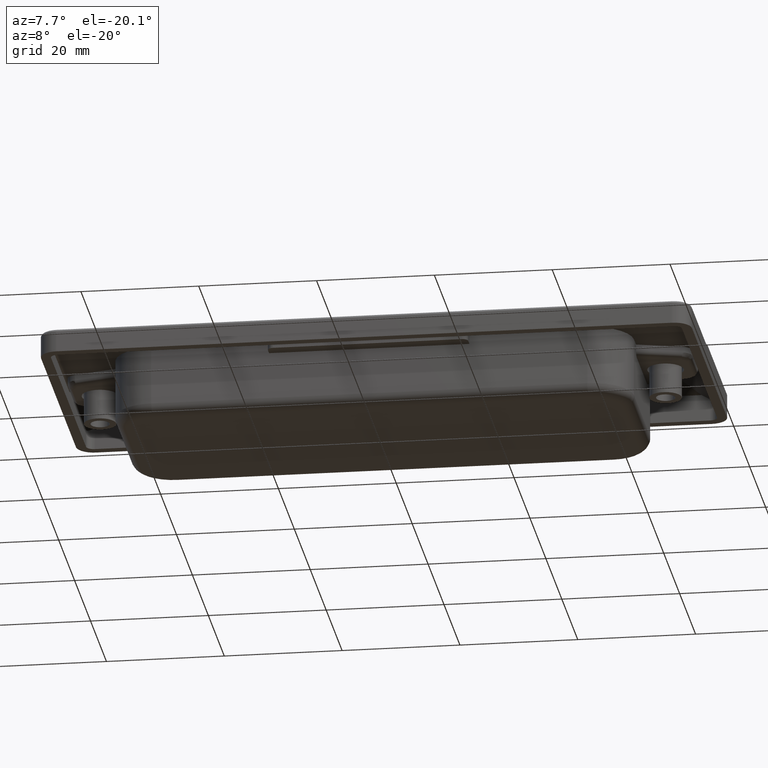
[diagram: clean part render]
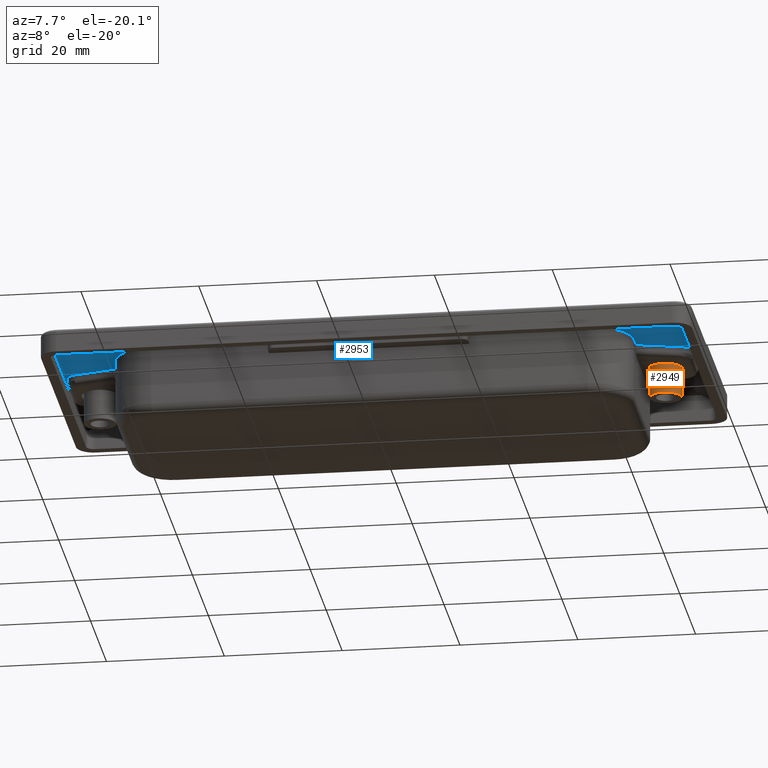
[diagram: same view with the hole feature highlighted: cylindrical wall and planar end face, labeled with their STEP entity ids]
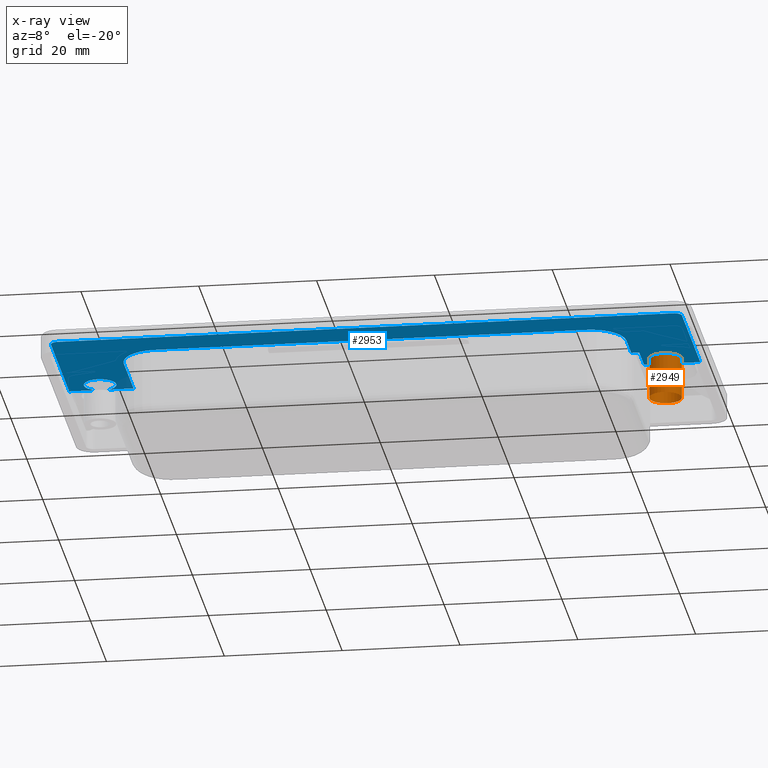
[diagram: x-ray of the same camera — body ghosted, the hole faces saturated]
A machine part, auxiliary view. The highlighted faces form one hole feature of diameter 5.5 mm: the cylindrical wall (entity #2949, orange) and its adjacent planar end face (entity #2953, blue) — they share a circular edge in the B-rep.
The next image is the same camera in x-ray (body ghosted, the hole faces saturated) — the bore reads through the body.
Wall:
#37=FACE_BOUND('',#923,.T.);
#633=CYLINDRICAL_SURFACE('',#3166,2.75);
#741=FACE_OUTER_BOUND('',#922,.T.);
#922=EDGE_LOOP('',(#2127));
#923=EDGE_LOOP('',(#2128,#2129));
#1142=CIRCLE('',#3167,2.75);
#1143=CIRCLE('',#3168,2.75);
#1144=CIRCLE('',#3169,2.75);
#1323=VERTEX_POINT('',#4714);
#1324=VERTEX_POINT('',#4716);
#1325=VERTEX_POINT('',#4717);
#1634=EDGE_CURVE('',#1323,#1323,#1142,.T.);
#1635=EDGE_CURVE('',#1324,#1325,#1143,.T.);
#1636=EDGE_CURVE('',#1325,#1324,#1144,.T.);
#2127=ORIENTED_EDGE('',*,*,#1634,.F.);
#2128=ORIENTED_EDGE('',*,*,#1635,.F.);
#2129=ORIENTED_EDGE('',*,*,#1636,.F.);
#2949=ADVANCED_FACE('',(#741,#37),#633,.T.);
#3166=AXIS2_PLACEMENT_3D('',#4713,#3618,#3619);
#3167=AXIS2_PLACEMENT_3D('',#4715,#3620,#3621);
#3168=AXIS2_PLACEMENT_3D('',#4718,#3622,#3623);
#3169=AXIS2_PLACEMENT_3D('',#4719,#3624,#3625);
#3618=DIRECTION('center_axis',(0.,0.,-1.));
#3619=DIRECTION('ref_axis',(1.,0.,0.));
#3620=DIRECTION('center_axis',(0.,0.,-1.));
#3621=DIRECTION('ref_axis',(1.,0.,0.));
#3622=DIRECTION('center_axis',(0.,0.,1.));
#3623=DIRECTION('ref_axis',(1.,0.,0.));
#3624=DIRECTION('center_axis',(0.,0.,1.));
#3625=DIRECTION('ref_axis',(1.,0.,0.));
#4713=CARTESIAN_POINT('Origin',(48.,23.5,-1.7));
#4714=CARTESIAN_POINT('',(45.25,23.5,-8.7));
#4715=CARTESIAN_POINT('Origin',(48.,23.5,-8.7));
#4716=CARTESIAN_POINT('',(46.8543560762611,26.,-1.7));
#4717=CARTESIAN_POINT('',(49.145643923739,26.,-1.7));
#4718=CARTESIAN_POINT('Origin',(48.,23.5,-1.7));
#4719=CARTESIAN_POINT('Origin',(48.,23.5,-1.7));
End face:
#58=PLANE('',#3176);
#173=LINE('',#4731,#411);
#174=LINE('',#4733,#412);
#175=LINE('',#4737,#413);
#176=LINE('',#4741,#414);
#177=LINE('',#4745,#415);
#178=LINE('',#4747,#416);
#179=LINE('',#4749,#417);
#180=LINE('',#4750,#418);
#181=LINE('',#4752,#419);
#182=LINE('',#4754,#420);
#183=LINE('',#4758,#421);
#184=LINE('',#4761,#422);
#411=VECTOR('',#3638,4.2043560762611);
#412=VECTOR('',#3639,4.40435607626107);
#413=VECTOR('',#3644,12.2);
#414=VECTOR('',#3647,73.3);
#415=VECTOR('',#3650,6.19999999999999);
#416=VECTOR('',#3651,1.35000000000002);
#417=VECTOR('',#3652,6.);
#418=VECTOR('',#3653,2.85435607626104);
#419=VECTOR('',#3654,4.40435607626105);
#420=VECTOR('',#3655,23.);
#421=VECTOR('',#3658,104.5);
#422=VECTOR('',#3661,23.);
#745=FACE_OUTER_BOUND('',#928,.T.);
#928=EDGE_LOOP('',(#2141,#2142,#2143,#2144,#2145,#2146,#2147,#2148,#2149,
#2150,#2151,#2152,#2153,#2154,#2155,#2156,#2157,#2158));
#1140=CIRCLE('',#3162,2.75);
#1143=CIRCLE('',#3168,2.75);
#1147=CIRCLE('',#3177,6.);
#1148=CIRCLE('',#3178,5.99999999999999);
#1149=CIRCLE('',#3179,1.3);
#1150=CIRCLE('',#3180,1.3);
#1321=VERTEX_POINT('',#4706);
#1322=VERTEX_POINT('',#4707);
#1324=VERTEX_POINT('',#4716);
#1325=VERTEX_POINT('',#4717);
#1329=VERTEX_POINT('',#4729);
#1330=VERTEX_POINT('',#4732);
#1331=VERTEX_POINT('',#4736);
#1332=VERTEX_POINT('',#4738);
#1333=VERTEX_POINT('',#4740);
#1334=VERTEX_POINT('',#4742);
#1335=VERTEX_POINT('',#4744);
#1336=VERTEX_POINT('',#4746);
#1337=VERTEX_POINT('',#4748);
#1338=VERTEX_POINT('',#4751);
#1339=VERTEX_POINT('',#4753);
#1340=VERTEX_POINT('',#4755);
#1341=VERTEX_POINT('',#4757);
#1342=VERTEX_POINT('',#4759);
#1631=EDGE_CURVE('',#1321,#1322,#1140,.T.);
#1635=EDGE_CURVE('',#1324,#1325,#1143,.T.);
#1641=EDGE_CURVE('',#1329,#1322,#173,.T.);
#1642=EDGE_CURVE('',#1321,#1330,#174,.T.);
#1644=EDGE_CURVE('',#1329,#1331,#175,.T.);
#1645=EDGE_CURVE('',#1331,#1332,#1147,.T.);
#1646=EDGE_CURVE('',#1332,#1333,#176,.T.);
#1647=EDGE_CURVE('',#1333,#1334,#1148,.T.);
#1648=EDGE_CURVE('',#1334,#1335,#177,.T.);
#1649=EDGE_CURVE('',#1335,#1336,#178,.T.);
#1650=EDGE_CURVE('',#1336,#1337,#179,.T.);
#1651=EDGE_CURVE('',#1324,#1337,#180,.T.);
#1652=EDGE_CURVE('',#1338,#1325,#181,.T.);
#1653=EDGE_CURVE('',#1339,#1338,#182,.F.);
#1654=EDGE_CURVE('',#1340,#1339,#1149,.F.);
#1655=EDGE_CURVE('',#1341,#1340,#183,.T.);
#1656=EDGE_CURVE('',#1341,#1342,#1150,.T.);
#1657=EDGE_CURVE('',#1330,#1342,#184,.T.);
#2141=ORIENTED_EDGE('',*,*,#1631,.T.);
#2142=ORIENTED_EDGE('',*,*,#1641,.F.);
#2143=ORIENTED_EDGE('',*,*,#1644,.T.);
#2144=ORIENTED_EDGE('',*,*,#1645,.T.);
#2145=ORIENTED_EDGE('',*,*,#1646,.T.);
#2146=ORIENTED_EDGE('',*,*,#1647,.T.);
#2147=ORIENTED_EDGE('',*,*,#1648,.T.);
#2148=ORIENTED_EDGE('',*,*,#1649,.T.);
#2149=ORIENTED_EDGE('',*,*,#1650,.T.);
#2150=ORIENTED_EDGE('',*,*,#1651,.F.);
#2151=ORIENTED_EDGE('',*,*,#1635,.T.);
#2152=ORIENTED_EDGE('',*,*,#1652,.F.);
#2153=ORIENTED_EDGE('',*,*,#1653,.F.);
#2154=ORIENTED_EDGE('',*,*,#1654,.F.);
#2155=ORIENTED_EDGE('',*,*,#1655,.F.);
#2156=ORIENTED_EDGE('',*,*,#1656,.T.);
#2157=ORIENTED_EDGE('',*,*,#1657,.F.);
#2158=ORIENTED_EDGE('',*,*,#1642,.F.);
#2953=ADVANCED_FACE('',(#745),#58,.F.);
#3162=AXIS2_PLACEMENT_3D('',#4708,#3609,#3610);
#3168=AXIS2_PLACEMENT_3D('',#4718,#3622,#3623);
#3176=AXIS2_PLACEMENT_3D('',#4735,#3642,#3643);
#3177=AXIS2_PLACEMENT_3D('',#4739,#3645,#3646);
#3178=AXIS2_PLACEMENT_3D('',#4743,#3648,#3649);
#3179=AXIS2_PLACEMENT_3D('',#4756,#3656,#3657);
#3180=AXIS2_PLACEMENT_3D('',#4760,#3659,#3660);
#3609=DIRECTION('center_axis',(0.,0.,1.));
#3610=DIRECTION('ref_axis',(1.,0.,0.));
#3622=DIRECTION('center_axis',(0.,0.,1.));
#3623=DIRECTION('ref_axis',(1.,0.,0.));
#3638=DIRECTION('',(-1.,0.,0.));
#3639=DIRECTION('',(-1.,0.,0.));
#3642=DIRECTION('center_axis',(0.,0.,1.));
#3643=DIRECTION('ref_axis',(1.,0.,0.));
#3644=DIRECTION('',(2.22044604925031E-16,-1.,0.));
#3645=DIRECTION('center_axis',(0.,0.,1.));
#3646=DIRECTION('ref_axis',(-1.,-3.70074341541719E-16,0.));
#3647=DIRECTION('',(1.,1.81755474699889E-16,0.));
#3648=DIRECTION('center_axis',(0.,0.,1.));
#3649=DIRECTION('ref_axis',(0.,-1.,0.));
#3650=DIRECTION('',(-8.88178419700125E-16,1.,0.));
#3651=DIRECTION('',(1.,0.,0.));
#3652=DIRECTION('',(0.,1.,0.));
#3653=DIRECTION('',(-1.,0.,0.));
#3654=DIRECTION('',(-1.,0.,0.));
#3655=DIRECTION('',(0.,-1.,0.));
#3656=DIRECTION('center_axis',(0.,0.,-1.));
#3657=DIRECTION('ref_axis',(0.707106781186546,-0.707106781186549,-1.30841038223648E-16));
#3658=DIRECTION('',(1.,0.,0.));
#3659=DIRECTION('center_axis',(0.,0.,-1.));
#3660=DIRECTION('ref_axis',(-0.707106781186546,-0.707106781186549,-1.30841038223648E-16));
#3661=DIRECTION('',(0.,-1.,0.));
#4706=CARTESIAN_POINT('',(-49.1456439237389,26.,-1.7));
#4707=CARTESIAN_POINT('',(-46.8543560762611,26.,-1.7));
#4708=CARTESIAN_POINT('Origin',(-48.,23.5,-1.7));
#4716=CARTESIAN_POINT('',(46.8543560762611,26.,-1.7));
#4717=CARTESIAN_POINT('',(49.145643923739,26.,-1.7));
#4718=CARTESIAN_POINT('Origin',(48.,23.5,-1.7));
#4729=CARTESIAN_POINT('',(-42.65,26.,-1.7));
#4731=CARTESIAN_POINT('',(-45.375,26.,-1.7));
#4732=CARTESIAN_POINT('',(-53.55,26.,-1.7));
#4733=CARTESIAN_POINT('',(-45.375,26.,-1.7));
#4735=CARTESIAN_POINT('Origin',(-48.1,24.,-1.7));
#4736=CARTESIAN_POINT('',(-42.65,13.8,-1.7));
#4737=CARTESIAN_POINT('',(-42.65,29.4,-1.7));
#4738=CARTESIAN_POINT('',(-36.65,7.79999999999999,-1.7));
#4739=CARTESIAN_POINT('Origin',(-36.65,13.8,-1.7));
#4740=CARTESIAN_POINT('',(36.65,7.80000000000001,-1.7));
#4741=CARTESIAN_POINT('',(-18.325,7.8,-1.7));
#4742=CARTESIAN_POINT('',(42.65,13.8,-1.7));
#4743=CARTESIAN_POINT('Origin',(36.65,13.8,-1.7));
#4744=CARTESIAN_POINT('',(42.65,20.,-1.7));
#4745=CARTESIAN_POINT('',(42.65,19.4,-1.7));
#4746=CARTESIAN_POINT('',(44.,20.,-1.7));
#4747=CARTESIAN_POINT('',(0.,20.,-1.7));
#4748=CARTESIAN_POINT('',(44.,26.,-1.7));
#4749=CARTESIAN_POINT('',(44.,20.,-1.7));
#4750=CARTESIAN_POINT('',(2.725,26.,-1.7));
#4751=CARTESIAN_POINT('',(53.55,26.,-1.7));
#4752=CARTESIAN_POINT('',(2.725,26.,-1.7));
#4753=CARTESIAN_POINT('',(53.55,3.,-1.7));
#4754=CARTESIAN_POINT('',(53.55,23.9429599083614,-1.7));
#4755=CARTESIAN_POINT('',(52.25,1.7,-1.7));
#4756=CARTESIAN_POINT('Origin',(52.25,3.,-1.7));
#4757=CARTESIAN_POINT('',(-52.25,1.7,-1.7));
#4758=CARTESIAN_POINT('',(0.,1.7,-1.7));
#4759=CARTESIAN_POINT('',(-53.55,3.,-1.7));
#4760=CARTESIAN_POINT('Origin',(-52.25,3.,-1.7));
#4761=CARTESIAN_POINT('',(-53.55,23.4429599083614,-1.7));